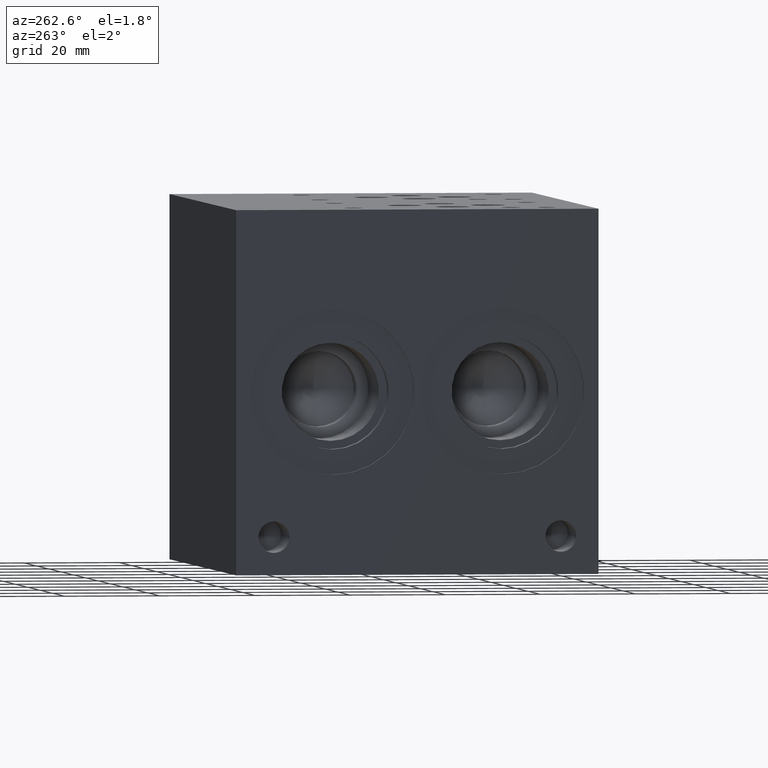
[diagram: clean part render]
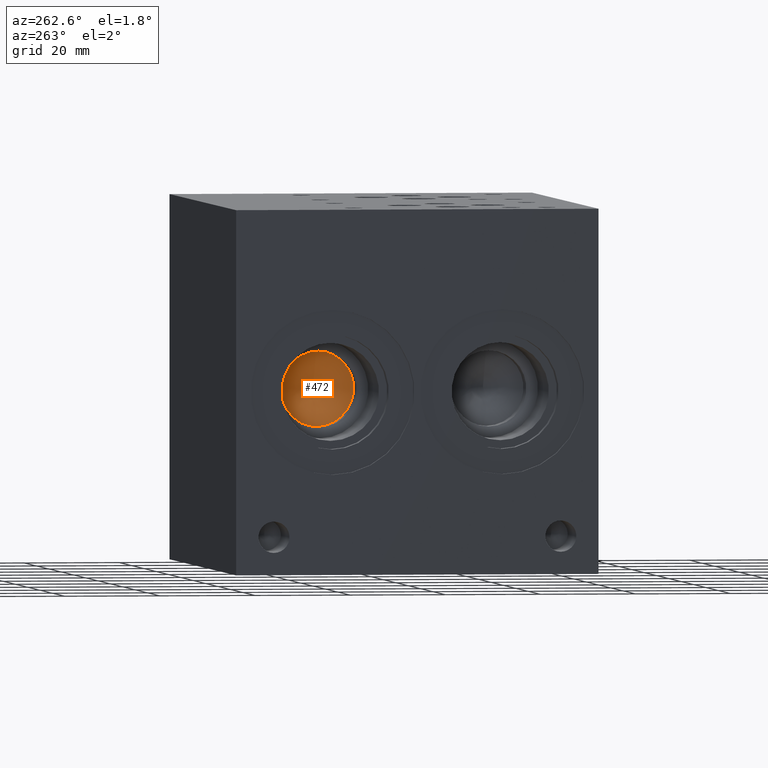
[diagram: same view with one face highlighted and labeled with its STEP entity id]
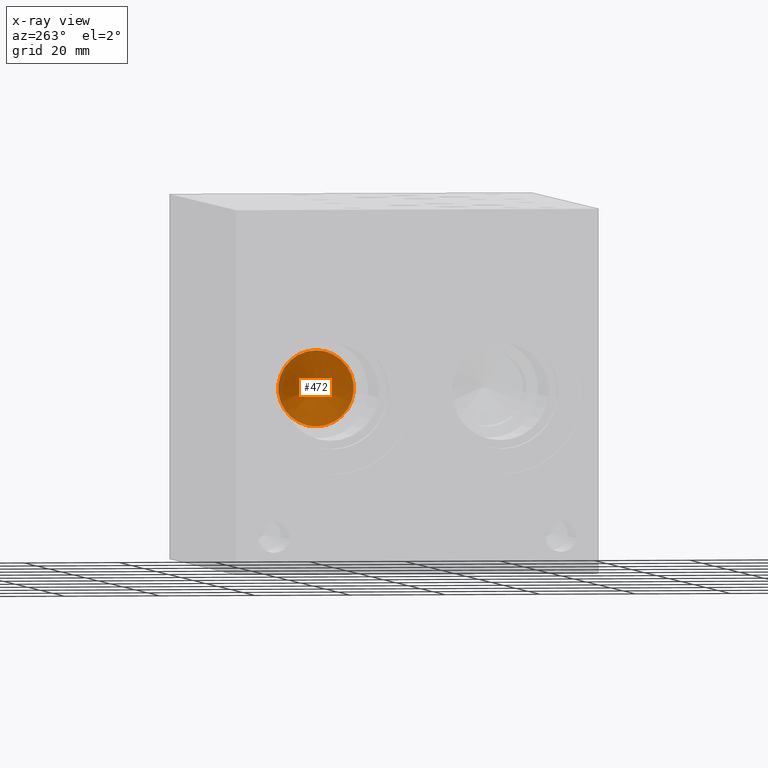
[diagram: x-ray of the same camera — body ghosted, the highlighted face saturated]
A machine part, auxiliary view. The second image highlights one B-rep face of the part: STEP entity #472.
The next image is the same camera in x-ray: the body ghosted, the highlighted face saturated — about 4% of this face is hidden behind the body in this view.
In plain terms, the highlighted conical surface has half-angle 60 deg.
Its self-contained STEP definition (entity closure, byte-faithful):
#456=CARTESIAN_POINT('',(28.986758899999998,55.956200000000003,38.100000000000009));
#457=DIRECTION('',(-1.0,0.0,0.0));
#458=DIRECTION('',(0.0,0.0,1.0));
#459=AXIS2_PLACEMENT_3D('',#456,#457,#458);
#460=CONICAL_SURFACE('',#459,3.968749999999996,59.999999792612627);
#461=CARTESIAN_POINT('',(26.695399999999999,55.956200000000003,46.037500000000009));
#462=VERTEX_POINT('',#461);
#463=CARTESIAN_POINT('',(26.695399999999999,55.956200000000003,38.100000000000009));
#464=DIRECTION('',(-1.0,0.0,0.0));
#465=DIRECTION('',(0.0,0.0,1.0));
#466=AXIS2_PLACEMENT_3D('',#463,#464,#465);
#467=CIRCLE('',#466,7.937500000000002);
#468=EDGE_CURVE('',#462,#462,#467,.T.);
#469=ORIENTED_EDGE('',*,*,#468,.T.);
#470=EDGE_LOOP('',(#469));
#471=FACE_OUTER_BOUND('',#470,.T.);
#472=ADVANCED_FACE('',(#471),#460,.F.);